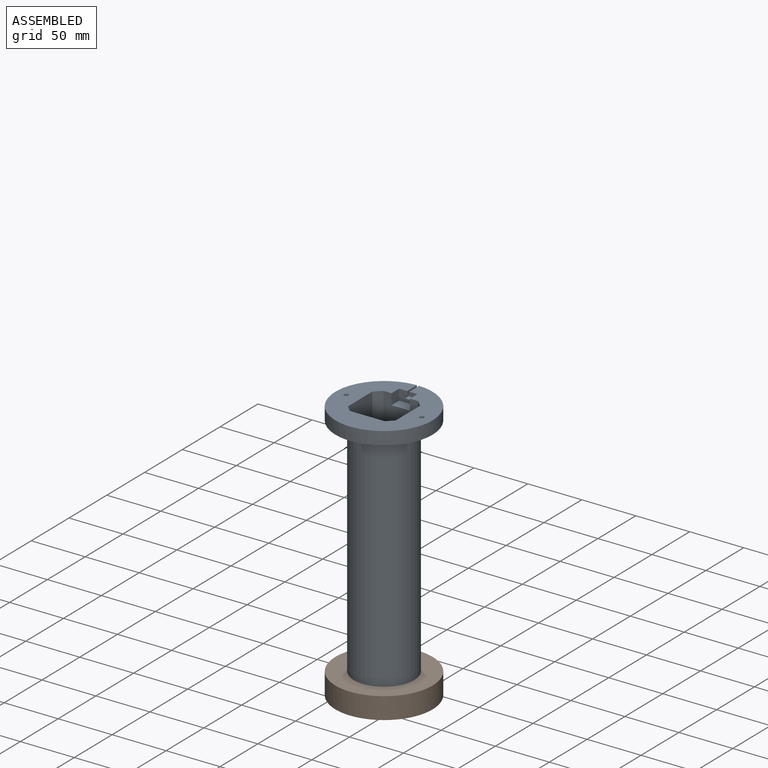
[diagram: assembled view]
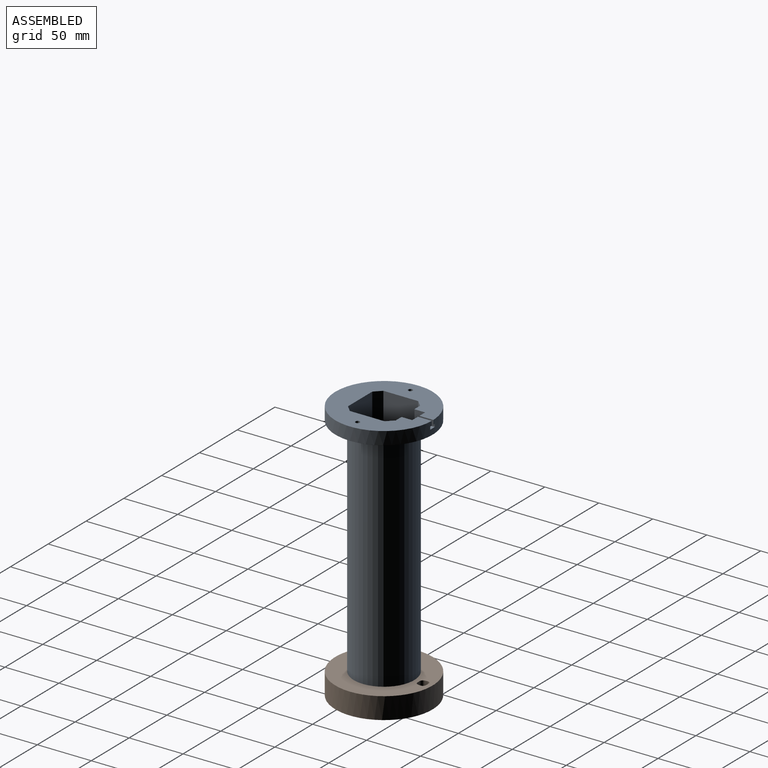
[diagram: assembled view, second angle]
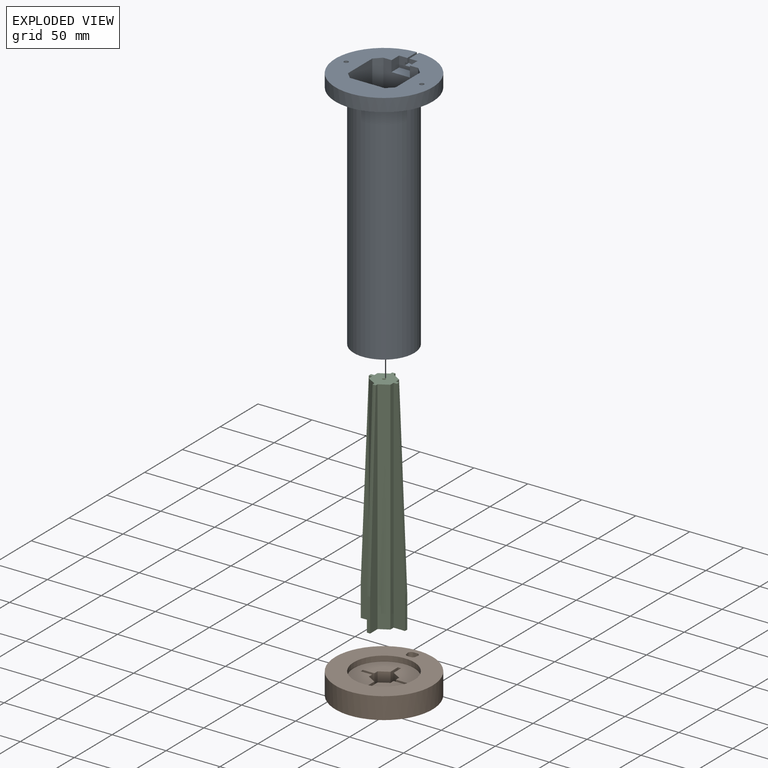
[diagram: exploded view]
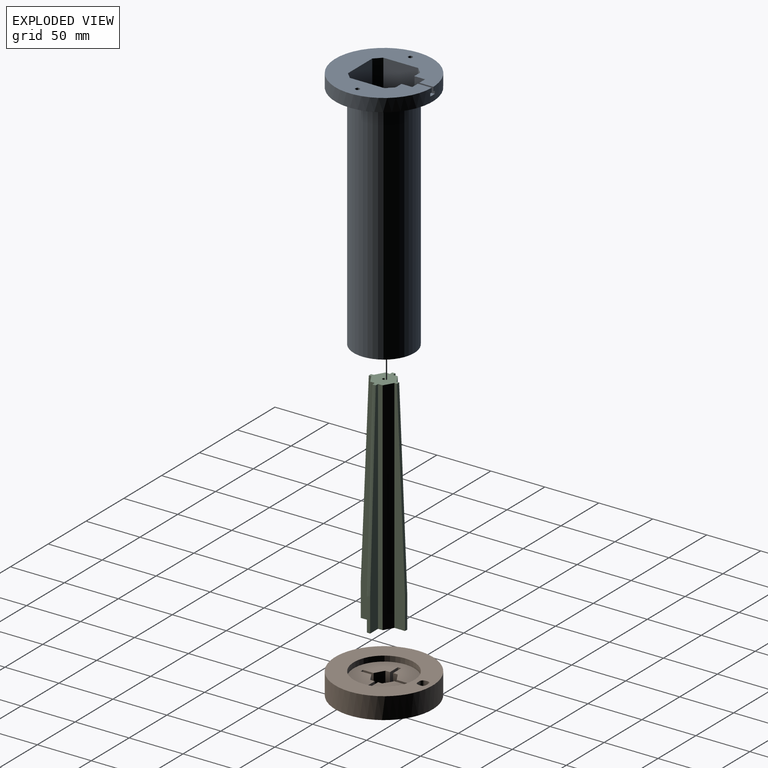
[diagram: exploded view, second angle]
ASSEMBLY  parts=3 mates=2
PART A: 47 faces, bbox 90x90x227 mm
  f0: cylinder r=45mm len=90mm, axis (0,0,-1), area 3361.1mm2, adj f1,f2,f12,f36,f37,f38,f41,f42
  f1: cylinder r=45mm len=4mm, axis (0,0,-1), area 8mm2, adj f0,f2,f39,f40
  f2: plane 90x89.99mm, normal (0,0,1), area 4254.8mm2, adj f0,f1,f3,f4,f5,f6,f7,f8
  f3: plane 17x10mm, normal (0,-1,0), area 146.2mm2, adj f2,f32,f33,f35,f36,f37,f38,f39
  f4: plane 34x32.25mm, normal (0,-1,0), area 926.5mm2, adj f2,f5,f11,f32,f33,f34,f35
  f5: plane 34x6mm, normal (0.71,-0.71,0), area 288.5mm2, adj f2,f4,f6,f34
  f6: plane 34x32.25mm, normal (1,0,0), area 1096.5mm2, adj f2,f5,f7,f34
  f7: plane 34x6mm, normal (0.71,0.71,0), area 288.5mm2, adj f2,f6,f8,f34
  f8: plane 34x32.25mm, normal (0,1,0), area 1096.5mm2, adj f2,f7,f9,f34
  f9: plane 34x6mm, normal (-0.71,0.71,0), area 288.5mm2, adj f2,f8,f10,f34
  f10: plane 34x32.25mm, normal (-1,0,0), area 1096.5mm2, adj f2,f9,f11,f34
  f11: plane 34x6mm, normal (-0.71,-0.71,0), area 288.5mm2, adj f2,f4,f10,f34
  f12: plane 90x90mm, normal (0,0,-1), area 3768.8mm2, adj f0,f13,f14,f15,f16,f17,f18,f20
  f13: plane 4.33x4mm, normal (0.87,-0.5,0), area 20mm2, adj f12,f14,f18,f19
  f14: plane 4.33x4mm, normal (0.87,0.5,0), area 20mm2, adj f12,f13,f15,f19
  f15: plane 5x4mm, normal (0,1,0), area 20mm2, adj f12,f14,f16,f19
  f16: plane 4.33x4mm, normal (-0.87,0.5,0), area 20mm2, adj f12,f15,f17,f19
  f17: plane 4.33x4mm, normal (-0.87,-0.5,0), area 20mm2, adj f12,f16,f18,f19
  f18: plane 5x4mm, normal (0,-1,0), area 20mm2, adj f12,f13,f17,f19
  f19: plane 10x8.66mm, normal (0,0,-1), area 52.4mm2, adj f13,f14,f15,f16,f17,f18,f28
  f20: plane 4.33x4mm, normal (0.87,-0.5,0), area 20mm2, adj f12,f21,f25,f26
  f21: plane 4.33x4mm, normal (0.87,0.5,0), area 20mm2, adj f12,f20,f22,f26
  f22: plane 5x4mm, normal (0,1,0), area 20mm2, adj f12,f21,f23,f26
  f23: plane 4.33x4mm, normal (-0.87,0.5,0), area 20mm2, adj f12,f22,f24,f26
  f24: plane 4.33x4mm, normal (-0.87,-0.5,0), area 20mm2, adj f12,f23,f25,f26
  f25: plane 5x4mm, normal (0,-1,0), area 20mm2, adj f12,f20,f24,f26
  f26: plane 10x8.66mm, normal (0,0,-1), area 52.4mm2, adj f20,f21,f22,f23,f24,f25,f27
  f27: cylinder r=2mm len=8mm, axis (0,0,-1), area 100.5mm2, adj f2,f26
  f28: cylinder r=2mm len=8mm, axis (0,0,-1), area 100.5mm2, adj f2,f19
  f29: cylinder r=28mm len=215mm, axis (0,0,1), area 37824.8mm2, adj f12,f30
  f30: plane 56x56mm, normal (0,0,-1), area 1101.2mm2, adj f29,f31
  f31: cylinder r=20.82mm len=193mm, axis (0,0,1), area 25247.2mm2, adj f30,f34
  f32: plane 10x10mm, normal (1,0,0), area 100mm2, adj f2,f3,f4,f35
  f33: plane 10x10mm, normal (-1,0,0), area 100mm2, adj f2,f3,f4,f35
  f34: plane 44.25x44.25mm, normal (0,0,1), area 524.3mm2, adj f4,f5,f6,f7,f8,f9,f10,f11
  f35: plane 17x10mm, normal (0,0,1), area 170mm2, adj f3,f4,f32,f33
  f36: plane 12.78x2.64mm, normal (-1,0,0), area 33.7mm2, adj f0,f3,f37,f42
  f37: plane 12.88x6mm, normal (0,0,1), area 77mm2, adj f0,f3,f36,f38
  f38: plane 12.78x2.64mm, normal (1,0,0), area 33.7mm2, adj f0,f3,f37,f39
  f39: plane 12.86x2mm, normal (0,0,-1), area 25.7mm2, adj f1,f3,f38,f40
  f40: plane 12.86x4mm, normal (1,0,0), area 51.5mm2, adj f1,f2,f3,f39
  f41: plane 12.86x4mm, normal (-1,0,0), area 51.5mm2, adj f0,f2,f3,f42
  f42: plane 12.86x2mm, normal (0,0,-1), area 25.7mm2, adj f0,f3,f36,f41
  f43: plane 24.5x3mm, normal (0,0,1), area 49.6mm2, adj f45,f46
  f44: plane 24.5x3mm, normal (0,0,-1), area 49.6mm2, adj f45,f46
  f45: plane 34x24.5mm, normal (0,-1,0), area 832.8mm2, adj f43,f44,f46
  f46: cylinder r=26.5mm len=34mm, axis (0,0,1), area 865.7mm2, adj f43,f44,f45
PART B: 36 faces, bbox 90x90x20 mm
  f0: plane 10x4.27mm, normal (1,0,0), area 42.7mm2, adj f1,f19,f22,f34
  f1: plane 56x56mm, normal (0,0,1), area 1997.3mm2, adj f0,f2,f3,f4,f11,f20,f21,f22
  f2: plane 10x4.27mm, normal (-1,0,0), area 42.7mm2, adj f1,f3,f19,f30
  f3: plane 10x8.5mm, normal (-0.5,0.87,0), area 98.1mm2, adj f1,f2,f19,f28
  f4: plane 10x8.5mm, normal (-0.5,-0.87,0), area 98.1mm2, adj f1,f19,f23,f25
  f5: cylinder r=40.6mm len=6mm, axis (0,0,-1), area 21.8mm2, adj f9,f12,f14,f16
  f6: plane 6x2.19mm, normal (0.99,0.11,0), area 13.2mm2, adj f9,f12,f13,f14
  f7: cylinder r=32.4mm len=6mm, axis (0,0,-1), area 15.5mm2, adj f9,f12,f13,f15
  f8: plane 6x2.19mm, normal (-0.99,0.14,0), area 13.2mm2, adj f9,f12,f15,f16
  f9: plane 90x90mm, normal (0,0,1), area 3831.8mm2, adj f5,f6,f7,f8,f10,f11,f13,f14
  f10: cylinder r=45mm len=90mm, axis (0,0,-1), area 5654.9mm2, adj f9,f17
  f11: cylinder r=28mm len=56mm, axis (0,0,-1), area 879.6mm2, adj f1,f9
  f12: plane 9.37x8.25mm, normal (0,0,1), area 66.9mm2, adj f5,f6,f7,f8,f13,f14,f15,f16
  f13: cylinder r=3mm len=6mm, axis (0,0,-1), area 26.7mm2, adj f6,f7,f9,f12
  f14: cylinder r=3mm len=6mm, axis (0,0,-1), area 29.7mm2, adj f5,f6,f9,f12
  f15: cylinder r=3mm len=6mm, axis (0,0,-1), area 26.7mm2, adj f7,f8,f9,f12
  f16: cylinder r=3mm len=6mm, axis (0,0,-1), area 29.7mm2, adj f5,f8,f9,f12
  f17: plane 90x90mm, normal (0,0,-1), area 6342.1mm2, adj f10,f18
  f18: cylinder r=2.5mm len=5mm, axis (0,0,1), area 78.5mm2, adj f17,f19
  f19: plane 41x41mm, normal (0,0,1), area 446.1mm2, adj f0,f2,f3,f4,f18,f20,f21,f22
  f20: plane 10x8.5mm, normal (0.5,-0.87,0), area 98.1mm2, adj f1,f19,f21,f24
  f21: plane 10x4.27mm, normal (1,0,0), area 42.7mm2, adj f1,f19,f20,f33
  f22: plane 10x8.5mm, normal (0.5,0.87,0), area 98.1mm2, adj f0,f1,f19,f27
  f23: plane 10x4.27mm, normal (-1,0,0), area 42.7mm2, adj f1,f4,f19,f31
  f24: plane 10x9.82mm, normal (1,0,0), area 98.2mm2, adj f1,f19,f20,f26
  f25: plane 10x9.82mm, normal (-1,0,0), area 98.2mm2, adj f1,f4,f19,f26
  f26: plane 10x3mm, normal (0,-1,0), area 30mm2, adj f1,f19,f24,f25
  f27: plane 10x9.82mm, normal (1,0,0), area 98.2mm2, adj f1,f19,f22,f29
  f28: plane 10x9.82mm, normal (-1,0,0), area 98.2mm2, adj f1,f3,f19,f29
  f29: plane 10x3mm, normal (0,1,0), area 30mm2, adj f1,f19,f27,f28
  f30: plane 10.5x10mm, normal (0,1,0), area 105mm2, adj f1,f2,f19,f32
  f31: plane 10.5x10mm, normal (0,-1,0), area 105mm2, adj f1,f19,f23,f32
  f32: plane 10x3mm, normal (-1,0,0), area 30mm2, adj f1,f19,f30,f31
  f33: plane 10.5x10mm, normal (0,-1,0), area 105mm2, adj f1,f19,f21,f35
  f34: plane 10.5x10mm, normal (0,1,0), area 105mm2, adj f0,f1,f19,f35
  f35: plane 10x3mm, normal (1,0,0), area 30mm2, adj f1,f19,f33,f34
PART C: 45 faces, bbox 41.5x41.5x205.3 mm
  f0: plane 26.25x26.25mm, normal (0,0,1), area 371.3mm2, adj f2,f3,f5,f6,f7,f8,f11,f12
  f1: plane 31.06x3mm, normal (1,0,0), area 91.9mm2, adj f2,f6,f13,f29
  f2: plane 205.15x10.65mm, normal (0,1,0), area 1499.1mm2, adj f0,f1,f13,f16,f29
  f3: plane 205.15x9.97mm, normal (1,0,0), area 1359.5mm2, adj f0,f4,f13,f17,f32
  f4: plane 31.06x3mm, normal (0,1,0), area 91.9mm2, adj f3,f5,f13,f32
  f5: plane 205.15x9.97mm, normal (-1,0,0), area 1359.5mm2, adj f0,f4,f13,f18,f32
  f6: plane 205.15x10.65mm, normal (0,-1,0), area 1499.1mm2, adj f0,f1,f13,f21,f29
  f7: plane 205.15x10.65mm, normal (0,1,0), area 1499.1mm2, adj f0,f9,f13,f19,f31
  f8: plane 205.15x9.97mm, normal (1,0,0), area 1359.5mm2, adj f0,f10,f13,f20,f30
  f9: plane 31.06x3mm, normal (-1,0,0), area 91.9mm2, adj f7,f12,f13,f31
  f10: plane 31.06x3mm, normal (0,-1,0), area 91.9mm2, adj f8,f11,f13,f30
  f11: plane 205.15x9.97mm, normal (-1,0,0), area 1359.5mm2, adj f0,f10,f13,f15,f30
  f12: plane 205.15x10.65mm, normal (0,-1,0), area 1499.1mm2, adj f0,f9,f13,f14,f31
  f13: plane 41x41mm, normal (0,0,-1), area 453.2mm2, adj f1,f2,f3,f4,f5,f6,f7,f8
  f14: plane 205x4.27mm, normal (-1,0,0), area 876.1mm2, adj f0,f12,f13,f15
  f15: plane 205x8.5mm, normal (-0.5,-0.87,0), area 2012.1mm2, adj f0,f11,f13,f14
  f16: plane 205x4.27mm, normal (1,0,0), area 876.1mm2, adj f0,f2,f13,f17
  f17: plane 205x8.5mm, normal (0.5,0.87,0), area 2012.1mm2, adj f0,f3,f13,f16
  f18: plane 205.35x8.85mm, normal (-0.5,0.87,0), area 1976.9mm2, adj f0,f5,f13,f19,f36,f37,f38,f39
  f19: plane 205x4.27mm, normal (-1,0,0), area 876.1mm2, adj f0,f7,f13,f18
  f20: plane 205x8.5mm, normal (0.5,-0.87,0), area 2012.1mm2, adj f0,f8,f13,f21
  f21: plane 205x4.27mm, normal (1,0,0), area 876.1mm2, adj f0,f6,f13,f20
  f22: plane 8x3.46mm, normal (-0.5,-0.87,0), area 16.1mm2, adj f23,f27,f28,f38,f39,f40
  f23: plane 4x3.46mm, normal (0.5,-0.87,0), area 16mm2, adj f22,f24,f28,f40
  f24: plane 4x4mm, normal (1,0,0), area 16mm2, adj f23,f25,f28,f40
  f25: plane 8x3.46mm, normal (0.5,0.87,0), area 32mm2, adj f24,f26,f28,f38,f41
  f26: plane 8x3.46mm, normal (-0.5,0.87,0), area 32mm2, adj f25,f27,f28,f38
  f27: plane 8x4mm, normal (-1,0,0), area 32mm2, adj f22,f26,f28,f38
  f28: plane 8x6.93mm, normal (0,0,-1), area 29mm2, adj f22,f23,f24,f25,f26,f27,f43
  f29: cone r=20.85mm half-angle=2.4deg, axis (0,0,-1), area 542.4mm2, adj f0,f1,f2,f6
  f30: cone r=20.85mm half-angle=2.4deg, axis (0,0,-1), area 542.4mm2, adj f0,f8,f10,f11
  f31: cone r=20.85mm half-angle=2.4deg, axis (0,0,-1), area 542.4mm2, adj f0,f7,f9,f12
  f32: cone r=20.85mm half-angle=2.4deg, axis (0,0,-1), area 542.4mm2, adj f0,f3,f4,f5
  f33: plane 50x2.17mm, normal (0.57,-0.82,0), area 129.5mm2, adj f0,f34,f35,f36
  f34: cylinder r=1.5mm len=50mm, axis (0,0,1), area 308.4mm2, adj f0,f33,f35
  f35: plane 2.99x2.83mm, normal (0,0,1), area 5.6mm2, adj f33,f34
  f36: cylinder r=1mm len=8.72mm, axis (0.57,-0.82,0), area 58.1mm2, adj f18,f33
  f37: plane 8.66x5mm, normal (0.87,0.5,0), area 40mm2, adj f18,f38,f40,f41
  f38: plane 14.65x11.93mm, normal (0,0,1), area 88.1mm2, adj f18,f22,f25,f26,f27,f37,f39,f41
  f39: plane 8.64x4.99mm, normal (-0.87,-0.5,0), area 39.9mm2, adj f18,f22,f38,f40
  f40: plane 12.66x11.91mm, normal (0,0,-1), area 59.1mm2, adj f18,f22,f23,f24,f37,f39,f41
  f41: plane 4x0mm, normal (-0.5,0.87,0), area 0mm2, adj f25,f37,f38,f40
  f42: cylinder r=2mm len=8mm, axis (0,0,-1), area 100.5mm2, adj f13,f38
  f43: cylinder r=2mm len=14mm, axis (0,0,-1), area 175.9mm2, adj f28,f44
  f44: plane 4x4mm, normal (0,0,-1), area 12.6mm2, adj f43
PLACE A t=(7.78,44.95,285.66)mm
PLACE B t=(-16.72,69.45,118.66)mm
PLACE C t=(-16.72,69.45,113.66)mm
MATE planar A.f0 <-> B.f5  axis (0,0,-1) through (-16.72,69.45,123.66)mm
MATE planar C.f29 <-> B.f5  axis (0,0,-1) through (-16.72,69.45,113.66)mm
